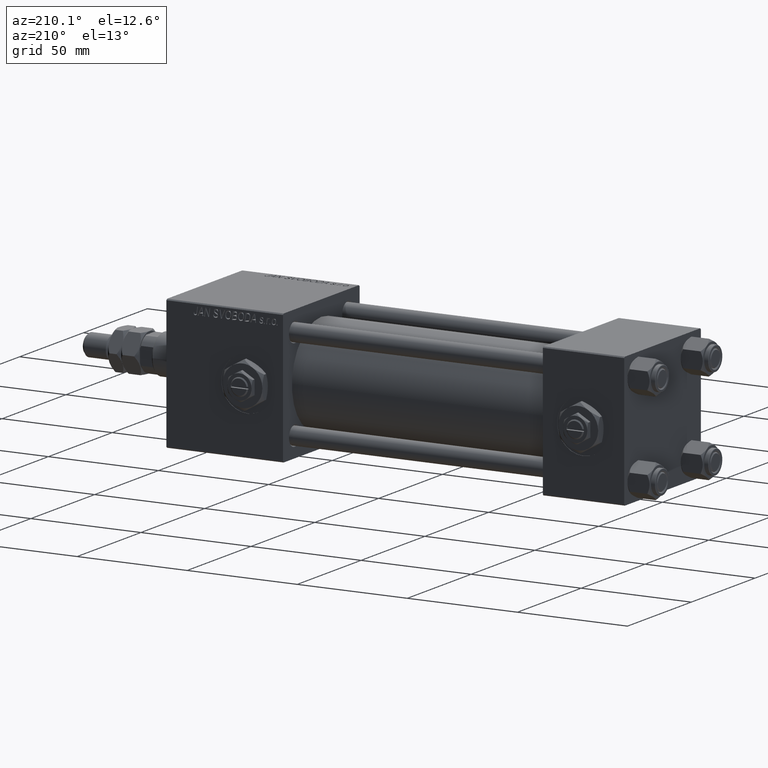
[diagram: clean part render]
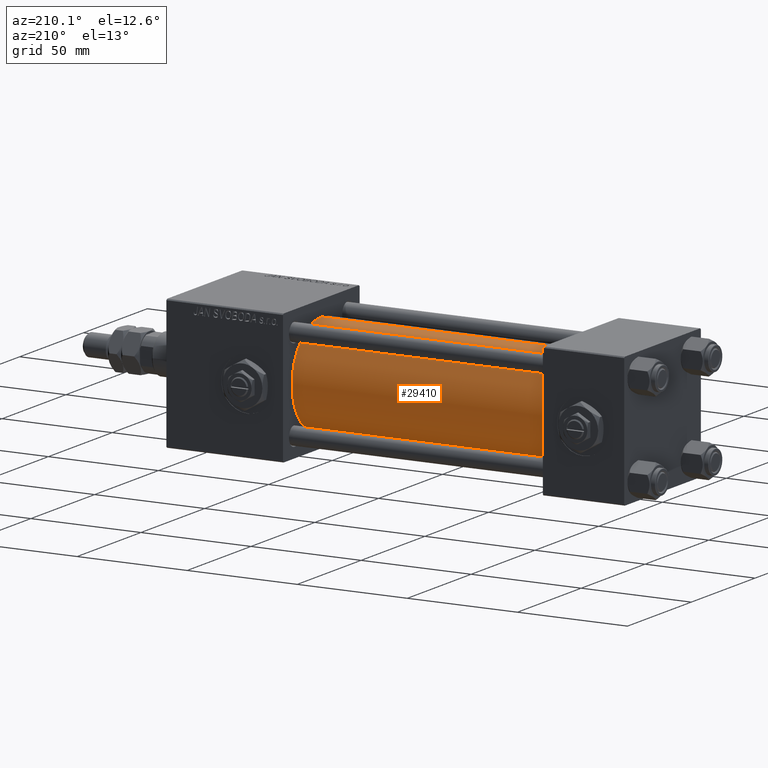
[diagram: same view with one face highlighted and labeled with its STEP entity id]
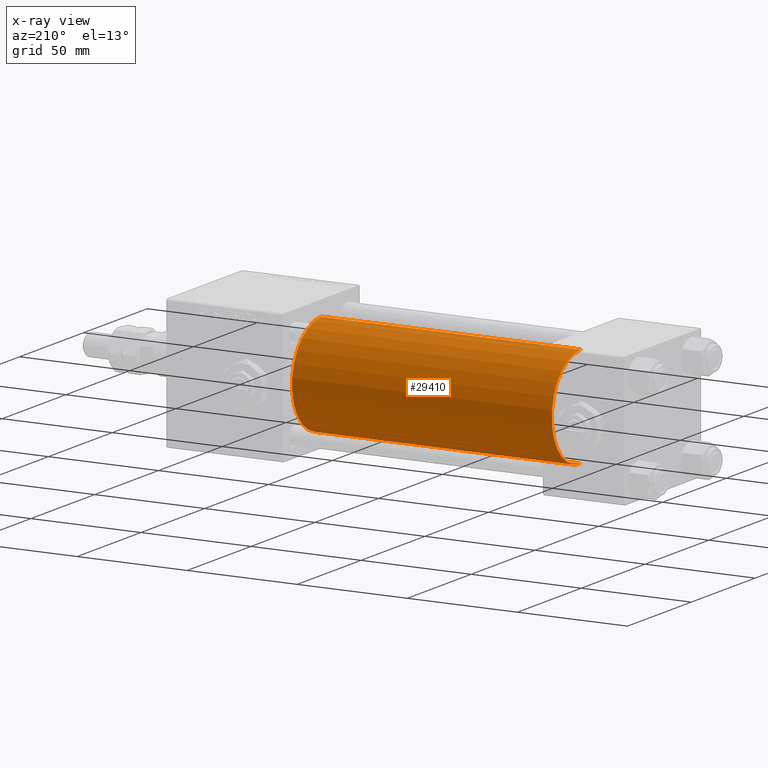
[diagram: x-ray of the same camera — body ghosted, the highlighted face saturated]
A machine part, auxiliary view. The second image highlights one B-rep face of the part: STEP entity #29410.
The next image is the same camera in x-ray: the body ghosted, the highlighted face saturated — about 0% of this face is hidden behind the body in this view.
In plain terms, the highlighted cylindrical surface (partial cylindrical patch) has radius 23 mm, axis along (-1, -0, -0).
Its self-contained STEP definition (entity closure, byte-faithful):
#1844 = ORIENTED_EDGE ( 'NONE', *, *, #44621, .F. ) ;
#2233 = CARTESIAN_POINT ( 'NONE',  ( 155.0000000000000000, 2.146024240737016609E-16, -23.00000000000000000 ) ) ;
#3723 = EDGE_LOOP ( 'NONE', ( #1844, #4633, #17486, #8836 ) ) ;
#4633 = ORIENTED_EDGE ( 'NONE', *, *, #8748, .T. ) ;
#6344 = VERTEX_POINT ( 'NONE', #10160 ) ;
#7558 = AXIS2_PLACEMENT_3D ( 'NONE', #40678, #40138, #19445 ) ;
#8748 = EDGE_CURVE ( 'NONE', #10234, #50284, #48903, .T. ) ;
#8836 = ORIENTED_EDGE ( 'NONE', *, *, #9292, .F. ) ;
#9292 = EDGE_CURVE ( 'NONE', #6344, #10668, #48231, .T. ) ;
#10160 = CARTESIAN_POINT ( 'NONE',  ( 155.0000000000000000, -2.602085213965210642E-15, 23.00000000000000000 ) ) ;
#10234 = VERTEX_POINT ( 'NONE', #2233 ) ;
#10668 = VERTEX_POINT ( 'NONE', #51767 ) ;
#11674 = AXIS2_PLACEMENT_3D ( 'NONE', #40717, #49959, #37432 ) ;
#14235 = VECTOR ( 'NONE', #45089, 1000.000000000000000 ) ;
#16040 = CIRCLE ( 'NONE', #11674, 23.00000000000000000 ) ;
#17486 = ORIENTED_EDGE ( 'NONE', *, *, #22787, .T. ) ;
#18468 = AXIS2_PLACEMENT_3D ( 'NONE', #40791, #33167, #28559 ) ;
#18827 = CARTESIAN_POINT ( 'NONE',  ( 155.0000000000000000, -2.602085213965210642E-15, 23.00000000000000000 ) ) ;
#19445 = DIRECTION ( 'NONE',  ( 0.000000000000000000, 0.000000000000000000, 1.000000000000000000 ) ) ;
#20218 = CIRCLE ( 'NONE', #18468, 23.00000000000000000 ) ;
#22787 = EDGE_CURVE ( 'NONE', #50284, #10668, #16040, .T. ) ;
#28559 = DIRECTION ( 'NONE',  ( 0.000000000000000000, 0.000000000000000000, -1.000000000000000000 ) ) ;
#29410 = ADVANCED_FACE ( 'NONE', ( #44491 ), #52930, .T. ) ;
#33167 = DIRECTION ( 'NONE',  ( 1.000000000000000000, 0.000000000000000000, 0.000000000000000000 ) ) ;
#36646 = CARTESIAN_POINT ( 'NONE',  ( 155.0000000000000000, 2.146024240737016609E-16, -23.00000000000000000 ) ) ;
#36869 = VECTOR ( 'NONE', #52050, 1000.000000000000000 ) ;
#37432 = DIRECTION ( 'NONE',  ( 0.000000000000000000, 0.000000000000000000, 1.000000000000000000 ) ) ;
#40138 = DIRECTION ( 'NONE',  ( -1.000000000000000000, -0.000000000000000000, -0.000000000000000000 ) ) ;
#40678 = CARTESIAN_POINT ( 'NONE',  ( 155.0000000000000000, -2.602085213965210642E-15, 0.000000000000000000 ) ) ;
#40717 = CARTESIAN_POINT ( 'NONE',  ( 37.00000000000000711, -2.602085213965210642E-15, 0.000000000000000000 ) ) ;
#40791 = CARTESIAN_POINT ( 'NONE',  ( 155.0000000000000000, -2.602085213965210642E-15, 0.000000000000000000 ) ) ;
#44491 = FACE_OUTER_BOUND ( 'NONE', #3723, .T. ) ;
#44621 = EDGE_CURVE ( 'NONE', #10234, #6344, #20218, .T. ) ;
#45089 = DIRECTION ( 'NONE',  ( -1.000000000000000000, -0.000000000000000000, -0.000000000000000000 ) ) ;
#48124 = CARTESIAN_POINT ( 'NONE',  ( 37.00000000000000711, 2.146024240737016609E-16, -23.00000000000000000 ) ) ;
#48231 = LINE ( 'NONE', #18827, #36869 ) ;
#48903 = LINE ( 'NONE', #36646, #14235 ) ;
#49959 = DIRECTION ( 'NONE',  ( 1.000000000000000000, -0.000000000000000000, 0.000000000000000000 ) ) ;
#50284 = VERTEX_POINT ( 'NONE', #48124 ) ;
#51767 = CARTESIAN_POINT ( 'NONE',  ( 37.00000000000000711, -2.602085213965210642E-15, 23.00000000000000000 ) ) ;
#52050 = DIRECTION ( 'NONE',  ( -1.000000000000000000, -0.000000000000000000, -0.000000000000000000 ) ) ;
#52930 = CYLINDRICAL_SURFACE ( 'NONE', #7558, 23.00000000000000000 ) ;